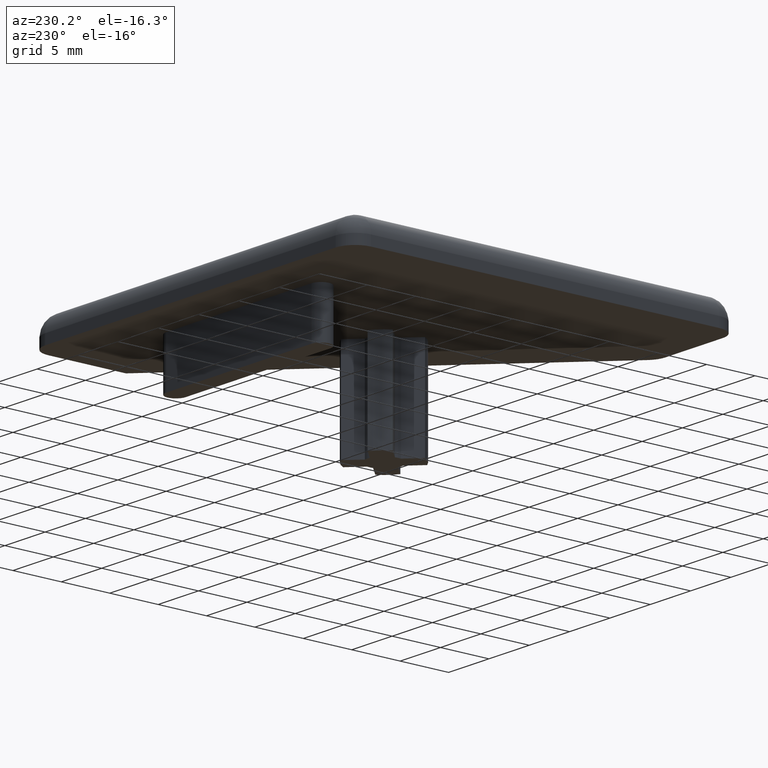
[diagram: clean part render]
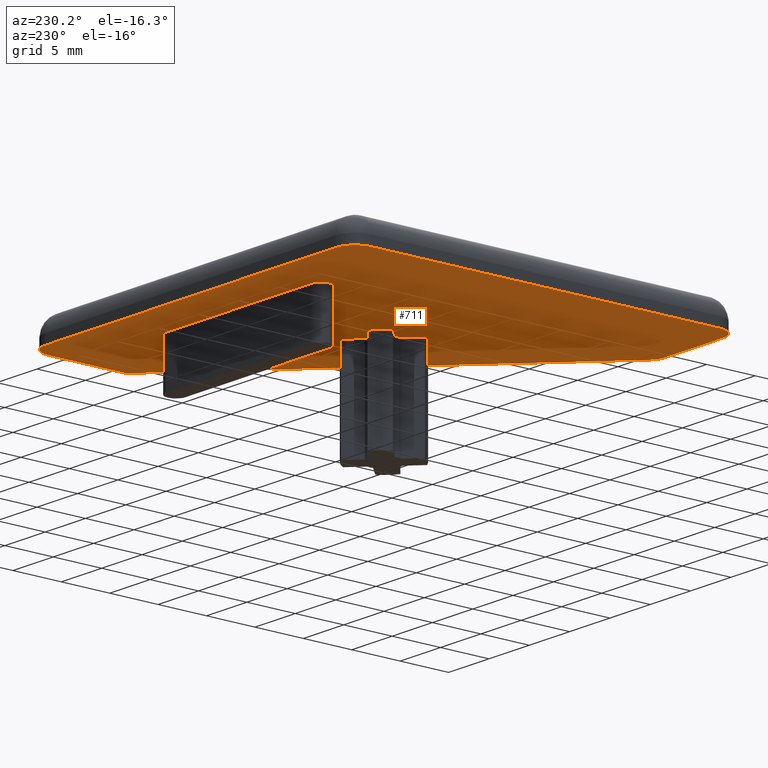
[diagram: same view with one face highlighted and labeled with its STEP entity id]
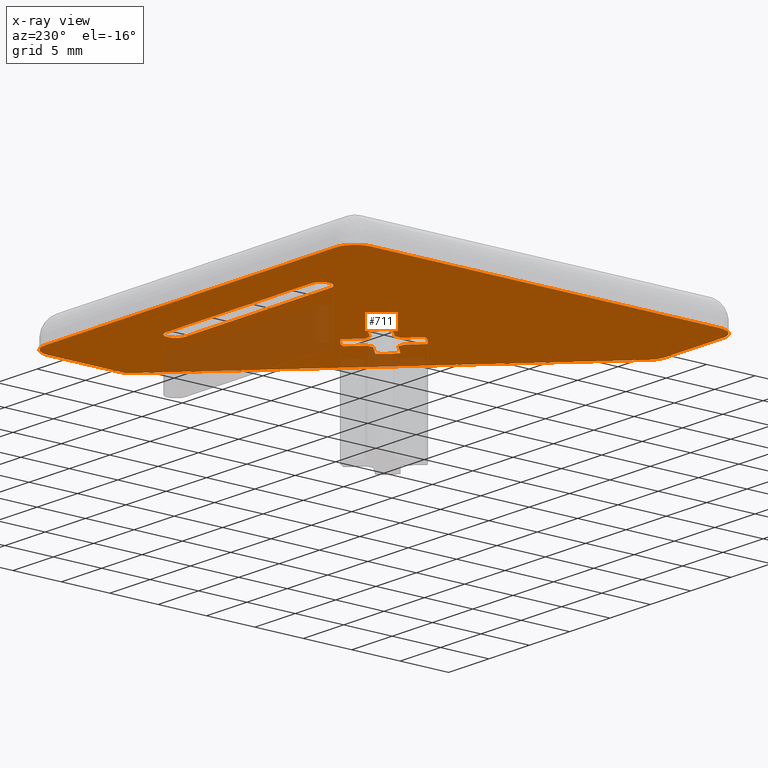
[diagram: x-ray of the same camera — body ghosted, the highlighted face saturated]
A machine part, auxiliary view. The second image highlights one B-rep face of the part: STEP entity #711.
The next image is the same camera in x-ray: the body ghosted, the highlighted face saturated — about 16% of this face is hidden behind the body in this view.
In plain terms, the highlighted planar face has unit normal (0, 0, 1).
Its self-contained STEP definition (entity closure, byte-faithful):
#13=FACE_BOUND($,#118,.T.);
#14=FACE_BOUND($,#119,.T.);
#15=FACE_BOUND($,#120,.T.);
#35=PLANE($,#793);
#118=EDGE_LOOP($,(#609,#610,#611,#612,#613,#614,#615,#616,#617,#618,#619,
#620,#621,#622,#623,#624));
#119=EDGE_LOOP($,(#625,#626,#627,#628));
#120=EDGE_LOOP($,(#629,#630,#631,#632,#633,#634,#635,#636,#637));
#127=LINE($,#1034,#191);
#131=LINE($,#1046,#195);
#135=LINE($,#1058,#199);
#139=LINE($,#1070,#203);
#143=LINE($,#1082,#207);
#147=LINE($,#1094,#211);
#151=LINE($,#1106,#215);
#155=LINE($,#1117,#219);
#163=LINE($,#1142,#227);
#164=LINE($,#1144,#228);
#183=LINE($,#1216,#247);
#184=LINE($,#1218,#248);
#185=LINE($,#1221,#249);
#186=LINE($,#1222,#250);
#187=LINE($,#1223,#251);
#191=VECTOR($,#810,1.91796130461518);
#195=VECTOR($,#822,1.91796130461518);
#199=VECTOR($,#834,1.91796130461518);
#203=VECTOR($,#846,1.91796130461518);
#207=VECTOR($,#858,1.91796130461518);
#211=VECTOR($,#870,1.91796130461518);
#215=VECTOR($,#882,1.91796130461518);
#219=VECTOR($,#894,1.91796130461518);
#227=VECTOR($,#920,18.);
#228=VECTOR($,#923,18.);
#247=VECTOR($,#1004,36.);
#248=VECTOR($,#1007,36.);
#249=VECTOR($,#1010,8.);
#250=VECTOR($,#1011,41.5979797464467);
#251=VECTOR($,#1012,7.17157287525381);
#253=CIRCLE($,#720,3.5);
#255=CIRCLE($,#724,1.75);
#257=CIRCLE($,#728,3.5);
#259=CIRCLE($,#732,1.75);
#261=CIRCLE($,#736,3.5);
#263=CIRCLE($,#740,1.75);
#265=CIRCLE($,#744,3.5);
#267=CIRCLE($,#748,1.75);
#271=CIRCLE($,#756,1.);
#272=CIRCLE($,#758,1.);
#276=CIRCLE($,#766,2.);
#280=CIRCLE($,#772,2.);
#284=CIRCLE($,#778,2.);
#288=CIRCLE($,#785,2.);
#289=VERTEX_POINT($,#1024);
#290=VERTEX_POINT($,#1025);
#293=VERTEX_POINT($,#1033);
#295=VERTEX_POINT($,#1039);
#297=VERTEX_POINT($,#1045);
#299=VERTEX_POINT($,#1051);
#301=VERTEX_POINT($,#1057);
#303=VERTEX_POINT($,#1063);
#305=VERTEX_POINT($,#1069);
#307=VERTEX_POINT($,#1075);
#309=VERTEX_POINT($,#1081);
#311=VERTEX_POINT($,#1087);
#313=VERTEX_POINT($,#1093);
#315=VERTEX_POINT($,#1099);
#317=VERTEX_POINT($,#1105);
#319=VERTEX_POINT($,#1111);
#325=VERTEX_POINT($,#1130);
#326=VERTEX_POINT($,#1132);
#327=VERTEX_POINT($,#1136);
#328=VERTEX_POINT($,#1138);
#332=VERTEX_POINT($,#1153);
#333=VERTEX_POINT($,#1154);
#337=VERTEX_POINT($,#1166);
#338=VERTEX_POINT($,#1167);
#342=VERTEX_POINT($,#1179);
#343=VERTEX_POINT($,#1180);
#347=VERTEX_POINT($,#1195);
#348=VERTEX_POINT($,#1196);
#351=VERTEX_POINT($,#1220);
#352=EDGE_CURVE($,#289,#290,#253,.T.);
#356=EDGE_CURVE($,#290,#293,#127,.T.);
#359=EDGE_CURVE($,#293,#295,#255,.T.);
#362=EDGE_CURVE($,#295,#297,#131,.T.);
#365=EDGE_CURVE($,#297,#299,#257,.T.);
#368=EDGE_CURVE($,#299,#301,#135,.T.);
#371=EDGE_CURVE($,#301,#303,#259,.T.);
#374=EDGE_CURVE($,#303,#305,#139,.T.);
#377=EDGE_CURVE($,#305,#307,#261,.T.);
#380=EDGE_CURVE($,#307,#309,#143,.T.);
#383=EDGE_CURVE($,#309,#311,#263,.T.);
#386=EDGE_CURVE($,#311,#313,#147,.T.);
#389=EDGE_CURVE($,#313,#315,#265,.T.);
#392=EDGE_CURVE($,#315,#317,#151,.T.);
#395=EDGE_CURVE($,#317,#319,#267,.T.);
#398=EDGE_CURVE($,#319,#289,#155,.T.);
#405=EDGE_CURVE($,#325,#326,#271,.F.);
#408=EDGE_CURVE($,#327,#328,#272,.F.);
#410=EDGE_CURVE($,#327,#326,#163,.T.);
#411=EDGE_CURVE($,#325,#328,#164,.T.);
#415=EDGE_CURVE($,#332,#333,#276,.T.);
#421=EDGE_CURVE($,#337,#338,#280,.T.);
#427=EDGE_CURVE($,#342,#343,#284,.T.);
#435=EDGE_CURVE($,#347,#348,#288,.T.);
#447=EDGE_CURVE($,#332,#343,#183,.T.);
#448=EDGE_CURVE($,#342,#348,#184,.T.);
#449=EDGE_CURVE($,#347,#351,#185,.T.);
#450=EDGE_CURVE($,#351,#338,#186,.T.);
#451=EDGE_CURVE($,#337,#333,#187,.T.);
#609=ORIENTED_EDGE($,*,*,#352,.T.);
#610=ORIENTED_EDGE($,*,*,#356,.T.);
#611=ORIENTED_EDGE($,*,*,#359,.T.);
#612=ORIENTED_EDGE($,*,*,#362,.T.);
#613=ORIENTED_EDGE($,*,*,#365,.T.);
#614=ORIENTED_EDGE($,*,*,#368,.T.);
#615=ORIENTED_EDGE($,*,*,#371,.T.);
#616=ORIENTED_EDGE($,*,*,#374,.T.);
#617=ORIENTED_EDGE($,*,*,#377,.T.);
#618=ORIENTED_EDGE($,*,*,#380,.T.);
#619=ORIENTED_EDGE($,*,*,#383,.T.);
#620=ORIENTED_EDGE($,*,*,#386,.T.);
#621=ORIENTED_EDGE($,*,*,#389,.T.);
#622=ORIENTED_EDGE($,*,*,#392,.T.);
#623=ORIENTED_EDGE($,*,*,#395,.T.);
#624=ORIENTED_EDGE($,*,*,#398,.T.);
#625=ORIENTED_EDGE($,*,*,#408,.F.);
#626=ORIENTED_EDGE($,*,*,#410,.T.);
#627=ORIENTED_EDGE($,*,*,#405,.F.);
#628=ORIENTED_EDGE($,*,*,#411,.T.);
#629=ORIENTED_EDGE($,*,*,#415,.F.);
#630=ORIENTED_EDGE($,*,*,#447,.T.);
#631=ORIENTED_EDGE($,*,*,#427,.F.);
#632=ORIENTED_EDGE($,*,*,#448,.T.);
#633=ORIENTED_EDGE($,*,*,#435,.F.);
#634=ORIENTED_EDGE($,*,*,#449,.T.);
#635=ORIENTED_EDGE($,*,*,#450,.T.);
#636=ORIENTED_EDGE($,*,*,#421,.F.);
#637=ORIENTED_EDGE($,*,*,#451,.T.);
#711=ADVANCED_FACE($,(#13,#14,#15),#35,.F.);
#720=AXIS2_PLACEMENT_3D($,#1026,#802,#803);
#724=AXIS2_PLACEMENT_3D($,#1040,#815,#816);
#728=AXIS2_PLACEMENT_3D($,#1052,#827,#828);
#732=AXIS2_PLACEMENT_3D($,#1064,#839,#840);
#736=AXIS2_PLACEMENT_3D($,#1076,#851,#852);
#740=AXIS2_PLACEMENT_3D($,#1088,#863,#864);
#744=AXIS2_PLACEMENT_3D($,#1100,#875,#876);
#748=AXIS2_PLACEMENT_3D($,#1112,#887,#888);
#756=AXIS2_PLACEMENT_3D($,#1133,#909,#910);
#758=AXIS2_PLACEMENT_3D($,#1139,#915,#916);
#766=AXIS2_PLACEMENT_3D($,#1155,#934,#935);
#772=AXIS2_PLACEMENT_3D($,#1168,#948,#949);
#778=AXIS2_PLACEMENT_3D($,#1181,#962,#963);
#785=AXIS2_PLACEMENT_3D($,#1197,#980,#981);
#793=AXIS2_PLACEMENT_3D($,#1219,#1008,#1009);
#802=DIRECTION('center_axis',(0.,0.,1.));
#803=DIRECTION('ref_axis',(-1.,0.,0.));
#810=DIRECTION($,(0.707106781186548,0.707106781186547,0.));
#815=DIRECTION('center_axis',(0.,0.,1.));
#816=DIRECTION('ref_axis',(0.176227439653113,-0.984349475294881,0.));
#822=DIRECTION($,(0.707106781186547,-0.707106781186547,0.));
#827=DIRECTION('center_axis',(0.,0.,1.));
#828=DIRECTION('ref_axis',(-1.,0.,0.));
#834=DIRECTION($,(-0.707106781186547,0.707106781186547,0.));
#839=DIRECTION('center_axis',(0.,0.,1.));
#840=DIRECTION('ref_axis',(0.984349475294881,0.176227439653113,0.));
#846=DIRECTION($,(0.707106781186549,0.707106781186546,0.));
#851=DIRECTION('center_axis',(0.,0.,1.));
#852=DIRECTION('ref_axis',(-1.,0.,0.));
#858=DIRECTION($,(-0.707106781186548,-0.707106781186548,0.));
#863=DIRECTION('center_axis',(0.,0.,1.));
#864=DIRECTION('ref_axis',(-0.176227439653114,0.984349475294881,0.));
#870=DIRECTION($,(-0.707106781186547,0.707106781186548,0.));
#875=DIRECTION('center_axis',(0.,0.,1.));
#876=DIRECTION('ref_axis',(-1.,0.,0.));
#882=DIRECTION($,(0.707106781186547,-0.707106781186547,0.));
#887=DIRECTION('center_axis',(0.,0.,1.));
#888=DIRECTION('ref_axis',(-0.984349475294881,-0.176227439653113,0.));
#894=DIRECTION($,(-0.707106781186547,-0.707106781186547,0.));
#909=DIRECTION('center_axis',(0.,0.,1.));
#910=DIRECTION('ref_axis',(0.707106781186549,0.707106781186546,0.));
#915=DIRECTION('center_axis',(0.,0.,1.));
#916=DIRECTION('ref_axis',(-0.707106781186548,-0.707106781186547,0.));
#920=DIRECTION($,(1.,-1.66533453693773E-016,0.));
#923=DIRECTION($,(-1.,0.,0.));
#934=DIRECTION('center_axis',(0.,0.,1.));
#935=DIRECTION('ref_axis',(-0.707106781186547,-0.707106781186548,0.));
#948=DIRECTION('center_axis',(0.,0.,1.));
#949=DIRECTION('ref_axis',(0.382683432365089,-0.923879532511287,0.));
#962=DIRECTION('center_axis',(0.,0.,1.));
#963=DIRECTION('ref_axis',(-0.707106781186547,0.707106781186548,0.));
#980=DIRECTION('center_axis',(0.,0.,1.));
#981=DIRECTION('ref_axis',(0.707106781186548,0.707106781186547,0.));
#1004=DIRECTION($,(0.,1.,0.));
#1007=DIRECTION($,(1.,0.,0.));
#1008=DIRECTION('center_axis',(0.,0.,1.));
#1009=DIRECTION('ref_axis',(1.,0.,0.));
#1010=DIRECTION($,(0.,-1.,0.));
#1011=DIRECTION($,(-0.707106781186548,-0.707106781186548,0.));
#1012=DIRECTION($,(-1.,0.,0.));
#1024=CARTESIAN_POINT('',(16.9211849736872,-21.6646014639397,0.));
#1025=CARTESIAN_POINT('',(18.3353985360603,-23.0788150263128,0.));
#1026=CARTESIAN_POINT('Origin',(20.,-20.,0.));
#1033=CARTESIAN_POINT('',(19.6916019806071,-21.722611581766,0.));
#1034=CARTESIAN_POINT($,(20.1993543808968,-21.2148591814763,0.));
#1039=CARTESIAN_POINT('',(20.3083980193929,-21.722611581766,0.));
#1040=CARTESIAN_POINT('Origin',(20.,-20.,0.));
#1045=CARTESIAN_POINT('',(21.6646014639397,-23.0788150263128,0.));
#1046=CARTESIAN_POINT($,(18.5905161577785,-20.0047297201516,0.));
#1051=CARTESIAN_POINT('',(23.0788150263128,-21.6646014639397,0.));
#1052=CARTESIAN_POINT('Origin',(20.,-20.,0.));
#1057=CARTESIAN_POINT('',(21.722611581766,-20.3083980193929,0.));
#1058=CARTESIAN_POINT($,(19.3266279978782,-17.9124144355051,0.));
#1063=CARTESIAN_POINT('',(21.722611581766,-19.6916019806071,0.));
#1064=CARTESIAN_POINT('Origin',(20.,-20.,0.));
#1069=CARTESIAN_POINT('',(23.0788150263128,-18.3353985360603,0.));
#1070=CARTESIAN_POINT($,(21.8929609037497,-19.5212526586234,0.));
#1075=CARTESIAN_POINT('',(21.6646014639397,-16.9211849736872,0.));
#1076=CARTESIAN_POINT('Origin',(20.,-20.,0.));
#1081=CARTESIAN_POINT('',(20.308398019393,-18.277388418234,0.));
#1082=CARTESIAN_POINT($,(19.8006456191032,-18.7851408185237,0.));
#1087=CARTESIAN_POINT('',(19.6916019806071,-18.277388418234,0.));
#1088=CARTESIAN_POINT('Origin',(20.,-20.,0.));
#1093=CARTESIAN_POINT('',(18.3353985360603,-16.9211849736872,0.));
#1094=CARTESIAN_POINT($,(17.6330214750253,-16.2188079126522,0.));
#1099=CARTESIAN_POINT('',(16.9211849736872,-18.3353985360603,0.));
#1100=CARTESIAN_POINT('Origin',(20.,-20.,0.));
#1105=CARTESIAN_POINT('',(18.277388418234,-19.6916019806071,0.));
#1106=CARTESIAN_POINT($,(16.8969096349256,-18.3111231972987,0.));
#1111=CARTESIAN_POINT('',(18.277388418234,-20.3083980193929,0.));
#1112=CARTESIAN_POINT('Origin',(20.,-20.,0.));
#1117=CARTESIAN_POINT($,(18.1070390962503,-20.4787473413766,0.));
#1130=CARTESIAN_POINT('',(29.,-5.,0.));
#1132=CARTESIAN_POINT('',(29.,-7.,0.));
#1133=CARTESIAN_POINT('Origin',(29.,-6.,0.));
#1136=CARTESIAN_POINT('',(11.,-7.,0.));
#1138=CARTESIAN_POINT('',(11.,-5.,0.));
#1139=CARTESIAN_POINT('Origin',(11.,-6.,0.));
#1142=CARTESIAN_POINT($,(23.1117688164019,-7.,0.));
#1144=CARTESIAN_POINT($,(13.1117688164019,-5.,0.));
#1153=CARTESIAN_POINT('',(0.,-38.,0.));
#1154=CARTESIAN_POINT('',(2.,-40.,0.));
#1155=CARTESIAN_POINT('Origin',(2.,-38.,0.));
#1166=CARTESIAN_POINT('',(9.1715728752538,-40.,0.));
#1167=CARTESIAN_POINT('',(10.5857864376269,-39.4142135623731,0.));
#1168=CARTESIAN_POINT('Origin',(9.1715728752538,-38.,0.));
#1179=CARTESIAN_POINT('',(2.,0.,0.));
#1180=CARTESIAN_POINT('',(0.,-2.,0.));
#1181=CARTESIAN_POINT('Origin',(2.,-2.,0.));
#1195=CARTESIAN_POINT('',(40.,-2.,0.));
#1196=CARTESIAN_POINT('',(38.,0.,0.));
#1197=CARTESIAN_POINT('Origin',(38.,-2.,0.));
#1216=CARTESIAN_POINT($,(0.,-40.,0.));
#1218=CARTESIAN_POINT($,(0.,0.,0.));
#1219=CARTESIAN_POINT('Origin',(16.2235376328038,-16.2235376328038,0.));
#1220=CARTESIAN_POINT('',(40.,-10.,0.));
#1221=CARTESIAN_POINT($,(40.,0.,0.));
#1222=CARTESIAN_POINT($,(40.,-10.,0.));
#1223=CARTESIAN_POINT($,(10.,-40.,0.));